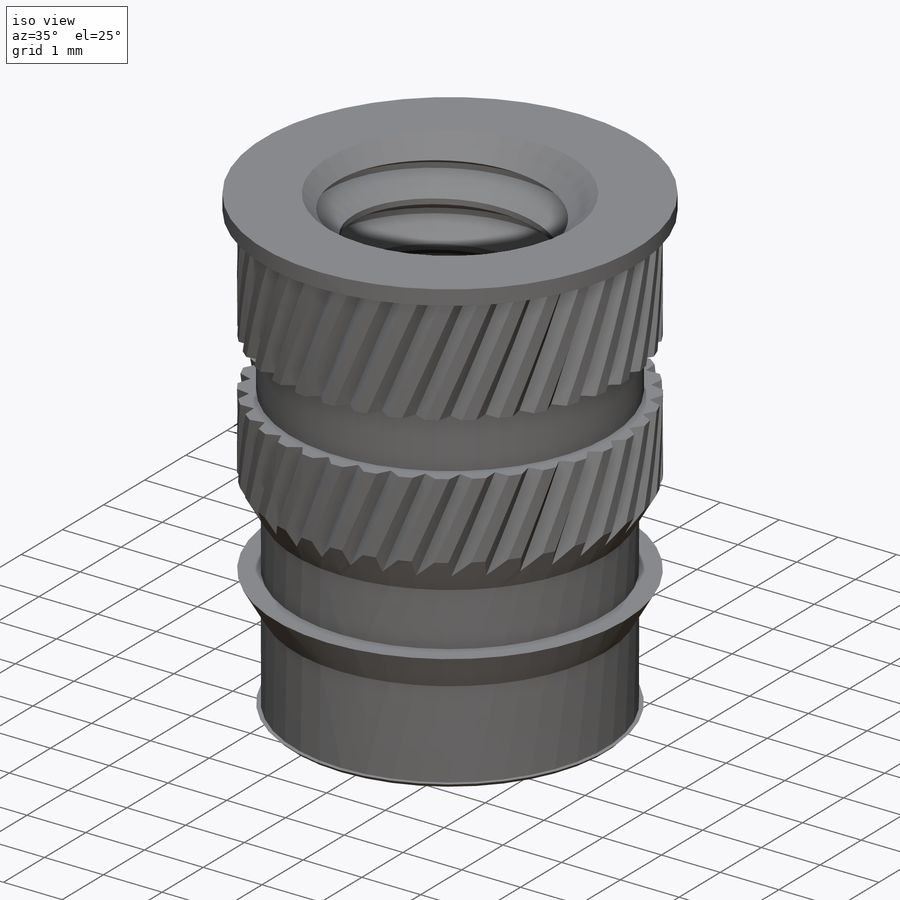
[diagram: iso view]
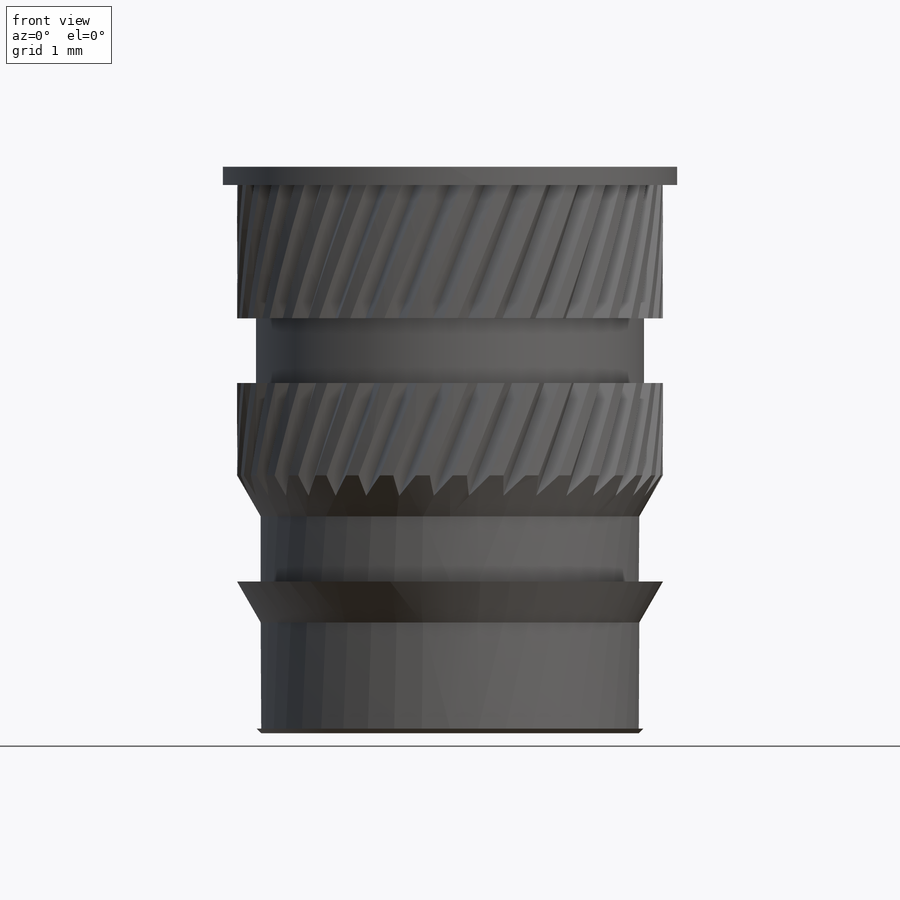
[diagram: front view]
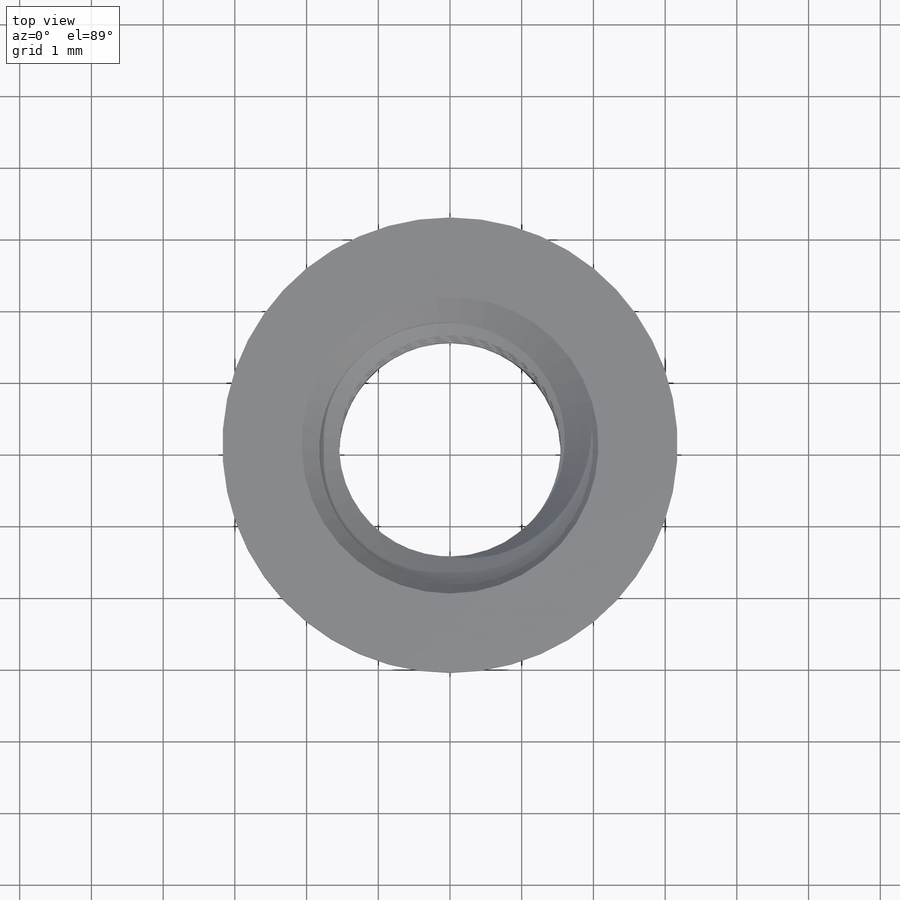
[diagram: top view]
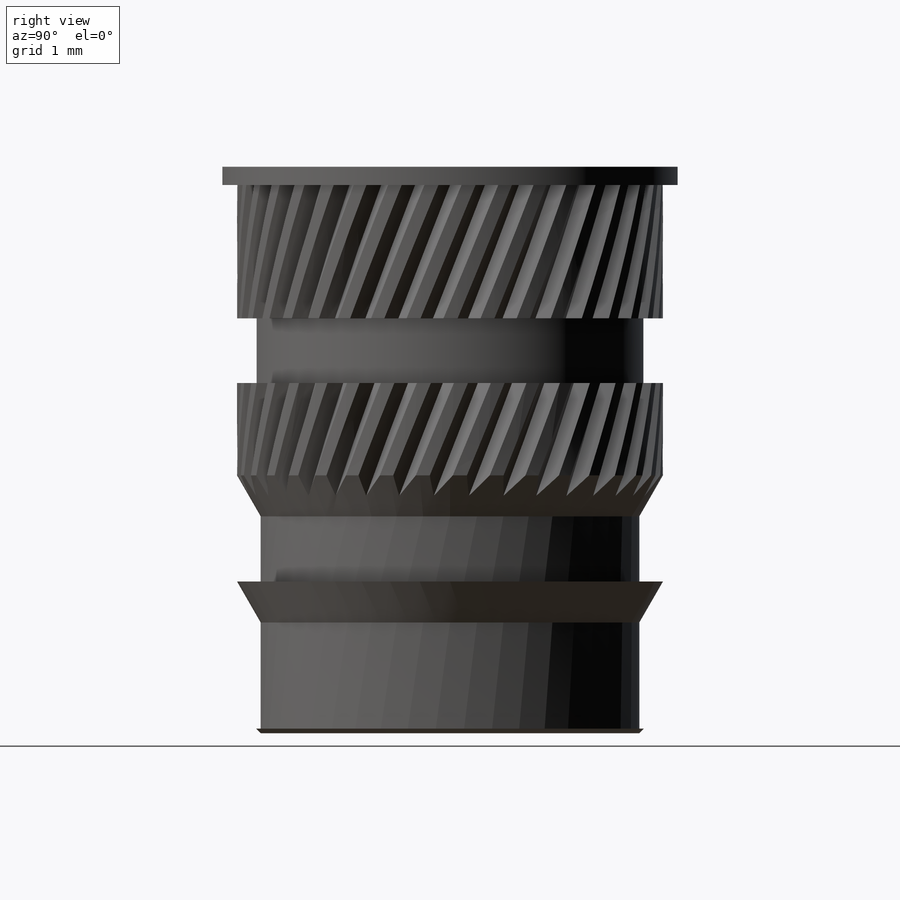
[diagram: right view]
SOLIDWORKS PART (.sldprt)
format: sldprt  version: not decoded by parser v0  size: 989,696 bytes
history: native  units: mm
features: sketch x13, extrude x5, helix x2, sweep x2, material x1, revolve x1, cut_extrude x1, chamfer x1, pattern_circular x1, mirror x1, cut_revolve x1 (+12 scaffold rows collapsed)
feature tree (41):
  scaffold x12  (default folders/planes/origin — collapsed)
  material  "Aluminum Bronze"
  sketch  "Sketch0"  dims[c1.Length=7.9mm c1.Collar Height=0.254mm c1.D2=~0.72644mm c1.Slot Height=~4.05892mm c1.Slot Width=~1.04775mm c2.D2=~1.822988mm c3.D2=45.0deg c3.A=2.9972mm c3.D5=4.7752mm c3.D1=~4.05892mm c3.Slot Height=0.381mm c4.A=6.35mm c4.C=5.28mm c4.D1=~1.213362mm c5.D1=30.0deg c5.B=5.41mm c5.D=5.94mm c5.D3=4.5085mm c5.Knurl=4.7625mm]
  sketch  "Sketch1"  dims[C=6.1468mm A=6.6802mm]
  extrude  "Extrude1"  [1 undecoded]
  extrude  "Extrude2"  [1 undecoded]
  sketch  "Sketch1<4>"
  extrude  "Extrude3"  [1 undecoded]
  sketch  "Sketch1<3>"
  sketch  "Sketch2"
  extrude  "Extrude4"  [1 undecoded]
  sketch  "Sketch3"
  extrude  "Extrude5"  [1 undecoded]
  sketch  "Sketch5"  dims[c1.D1=~1.045672mm c2.D1=60.0deg c2.D2=~1.613829mm]
  revolve  "Revolve1"  Angle=360deg
  sketch  "Sketch6"  dims[Thread OD=4.0mm D1=0.0mm]
  helix  "Helix/Spiral1"  Pitch=8.914159mm Height=8.914159mm
  sketch  "Sketch7"  dims[D1=0.7mm D2=0.0875mm]
  sketch  "Sketch8"  dims[Thread OD=3.5052mm]
  cut_extrude  "Extrude6"  [1 undecoded]
  chamfer  "Chamfer1"  Distance=0.525mm Angle=45deg
  sweep  "Cut-Sweep1"
  sketch  "Sketch9"
  helix  "Helix/Spiral2"  Pitch=4.5085mm Height=4.5085mm
  sketch  "Sketch10"
  sweep  "Cut-Sweep2"
  pattern_circular  "CirPattern1"  Count=36 Angle=360deg
  mirror  "Mirror1"
  sketch  "Sketch11"  dims[D1=0.9017mm]
  cut_revolve  "Cut-Revolve1"  Angle=360deg
decode coverage: 13 of 28 modeling features carry decoded parameters
note: ~ marks probable driven/reference dimensions
note: 6 parameter values undecoded
summary: no parameter record found for 6 features
note: suppression state not decoded; provenance and decode notes live in map.json
